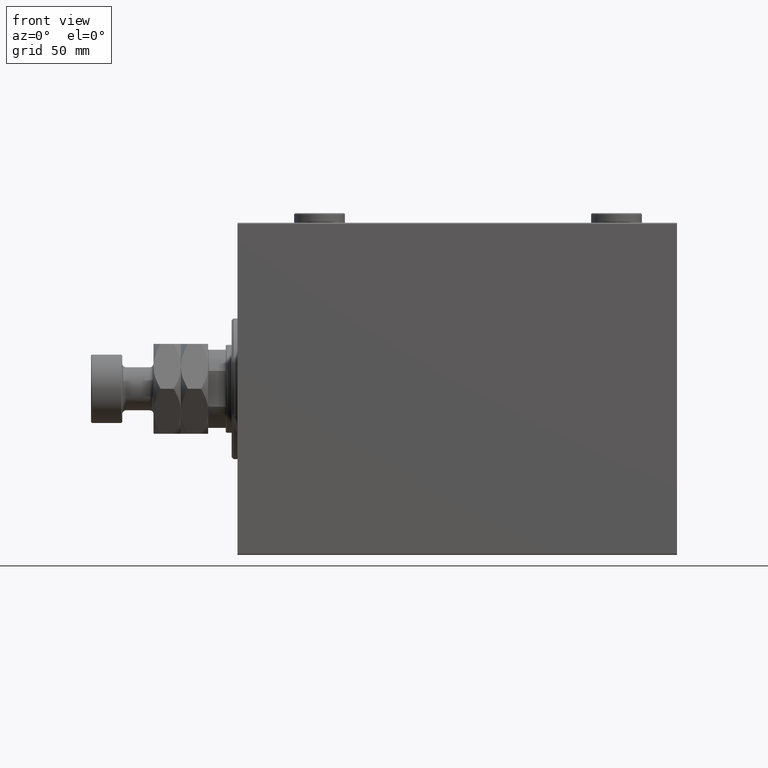
[diagram: clean part render]
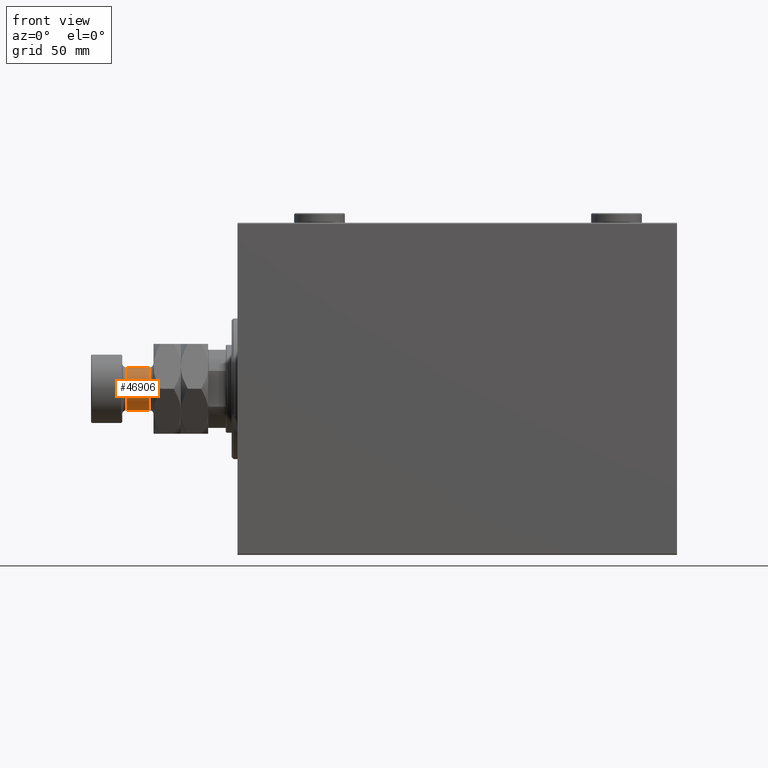
[diagram: same view with one face highlighted and labeled with its STEP entity id]
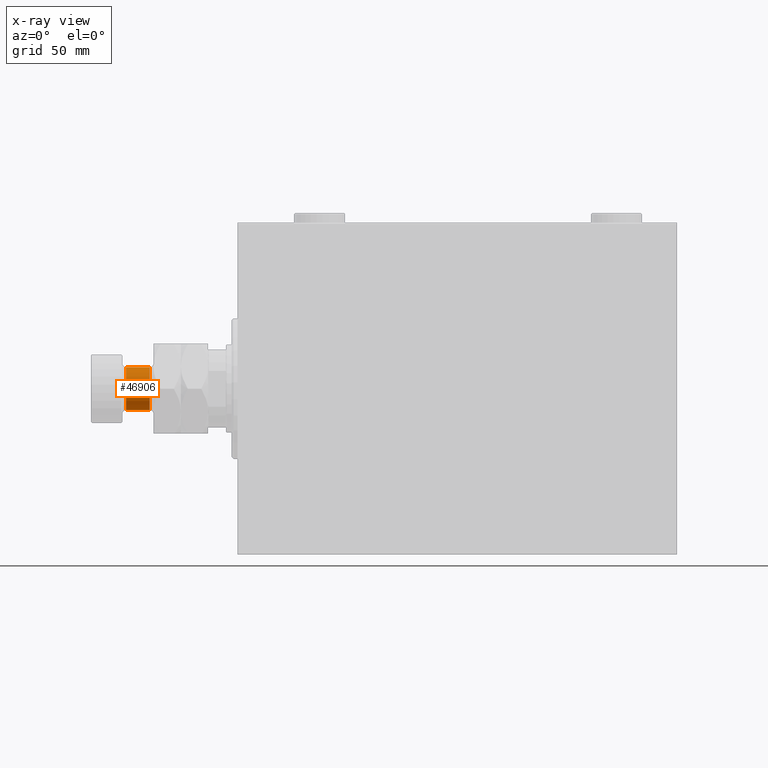
[diagram: x-ray of the same camera — body ghosted, the highlighted face saturated]
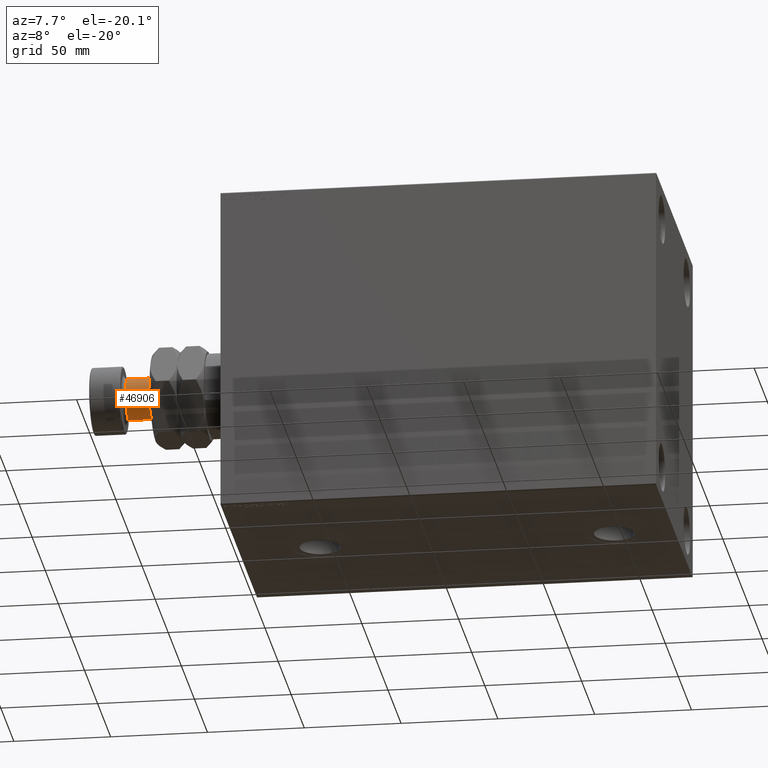
[diagram: same view with one face highlighted and labeled with its STEP entity id]
A machine part, front view. The second image highlights one B-rep face of the part: STEP entity #46906.
The next image is the same camera in x-ray: the body ghosted, the highlighted face saturated — about 0% of this face is hidden behind the body in this view.
A second angle (auxiliary view) of the same face is appended — the face is thin or edge-on in the first view.
In plain terms, the highlighted cylindrical surface (edge-blend (fillet) strip) has radius 11 mm, axis along (1, -0, -0).
Its self-contained STEP definition (entity closure, byte-faithful):
#887 = VERTEX_POINT ( 'NONE', #34151 ) ;
#4424 = DIRECTION ( 'NONE',  ( -0.000000000000000000, -0.000000000000000000, -1.000000000000000000 ) ) ;
#5357 = CARTESIAN_POINT ( 'NONE',  ( -11.00000000000000000, 0.000000000000000000, 44.00000000000000000 ) ) ;
#6355 = CARTESIAN_POINT ( 'NONE',  ( 0.000000000000000000, 0.000000000000000000, 41.99999999999999289 ) ) ;
#7653 = FACE_OUTER_BOUND ( 'NONE', #16659, .T. ) ;
#8243 = AXIS2_PLACEMENT_3D ( 'NONE', #27397, #12668, #9082 ) ;
#9082 = DIRECTION ( 'NONE',  ( 1.000000000000000000, 0.000000000000000000, 0.000000000000000000 ) ) ;
#9161 = ORIENTED_EDGE ( 'NONE', *, *, #24140, .T. ) ;
#10932 = ORIENTED_EDGE ( 'NONE', *, *, #44734, .T. ) ;
#12261 = VECTOR ( 'NONE', #4424, 1000.000000000000000 ) ;
#12668 = DIRECTION ( 'NONE',  ( 0.000000000000000000, 0.000000000000000000, 1.000000000000000000 ) ) ;
#16358 = VERTEX_POINT ( 'NONE', #19844 ) ;
#16659 = EDGE_LOOP ( 'NONE', ( #26011, #32404, #9161, #10932 ) ) ;
#19844 = CARTESIAN_POINT ( 'NONE',  ( -11.00000000000000000, 0.000000000000000000, 30.00000000000000000 ) ) ;
#19918 = VERTEX_POINT ( 'NONE', #34655 ) ;
#20408 = DIRECTION ( 'NONE',  ( -0.000000000000000000, -0.000000000000000000, -1.000000000000000000 ) ) ;
#21709 = CYLINDRICAL_SURFACE ( 'NONE', #31883, 11.00000000000000000 ) ;
#22021 = EDGE_CURVE ( 'NONE', #19918, #25854, #44843, .T. ) ;
#22351 = CIRCLE ( 'NONE', #29194, 11.00000000000000000 ) ;
#24140 = EDGE_CURVE ( 'NONE', #887, #16358, #25380, .T. ) ;
#25380 = LINE ( 'NONE', #5357, #46539 ) ;
#25854 = VERTEX_POINT ( 'NONE', #36213 ) ;
#26011 = ORIENTED_EDGE ( 'NONE', *, *, #22021, .F. ) ;
#27397 = CARTESIAN_POINT ( 'NONE',  ( 0.000000000000000000, 0.000000000000000000, 30.00000000000000000 ) ) ;
#28670 = EDGE_CURVE ( 'NONE', #19918, #887, #22351, .T. ) ;
#28835 = DIRECTION ( 'NONE',  ( -1.000000000000000000, 0.000000000000000000, 0.000000000000000000 ) ) ;
#29194 = AXIS2_PLACEMENT_3D ( 'NONE', #6355, #20408, #41827 ) ;
#31816 = CIRCLE ( 'NONE', #8243, 11.00000000000000000 ) ;
#31883 = AXIS2_PLACEMENT_3D ( 'NONE', #36449, #46700, #28835 ) ;
#32404 = ORIENTED_EDGE ( 'NONE', *, *, #28670, .T. ) ;
#34151 = CARTESIAN_POINT ( 'NONE',  ( -11.00000000000000000, 0.000000000000000000, 41.99999999999999289 ) ) ;
#34655 = CARTESIAN_POINT ( 'NONE',  ( 11.00000000000000000, 1.347111479062088405E-15, 41.99999999999999289 ) ) ;
#36213 = CARTESIAN_POINT ( 'NONE',  ( 11.00000000000000000, 1.347111479062088405E-15, 30.00000000000000000 ) ) ;
#36449 = CARTESIAN_POINT ( 'NONE',  ( 0.000000000000000000, 0.000000000000000000, 44.00000000000000000 ) ) ;
#37007 = CARTESIAN_POINT ( 'NONE',  ( 11.00000000000000000, 1.347111479062088405E-15, 44.00000000000000000 ) ) ;
#41534 = DIRECTION ( 'NONE',  ( -0.000000000000000000, -0.000000000000000000, -1.000000000000000000 ) ) ;
#41827 = DIRECTION ( 'NONE',  ( 1.000000000000000000, 0.000000000000000000, 0.000000000000000000 ) ) ;
#44734 = EDGE_CURVE ( 'NONE', #16358, #25854, #31816, .T. ) ;
#44843 = LINE ( 'NONE', #37007, #12261 ) ;
#46539 = VECTOR ( 'NONE', #41534, 1000.000000000000000 ) ;
#46700 = DIRECTION ( 'NONE',  ( -0.000000000000000000, -0.000000000000000000, -1.000000000000000000 ) ) ;
#46906 = ADVANCED_FACE ( 'NONE', ( #7653 ), #21709, .T. ) ;